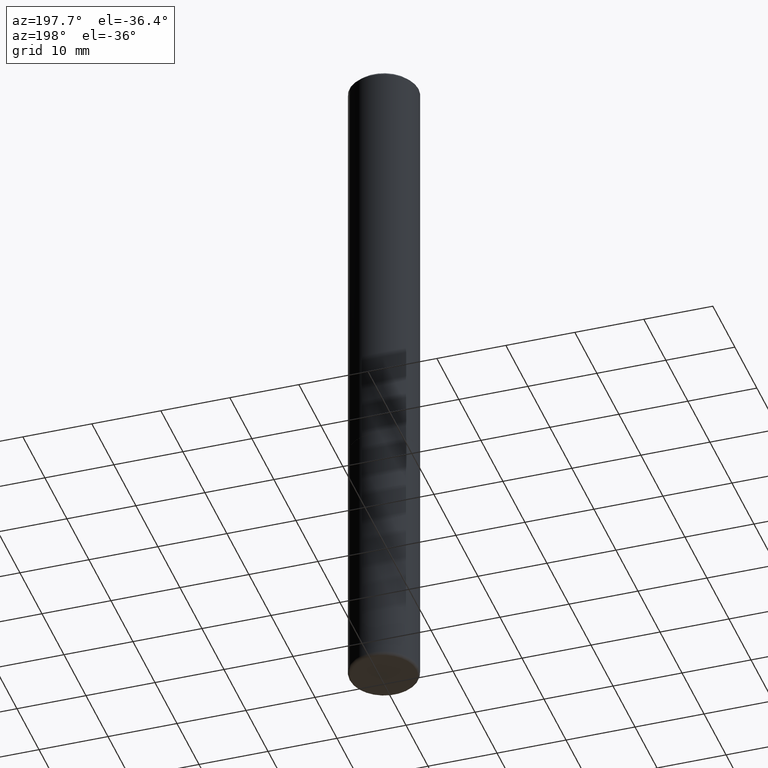
[diagram: clean part render]
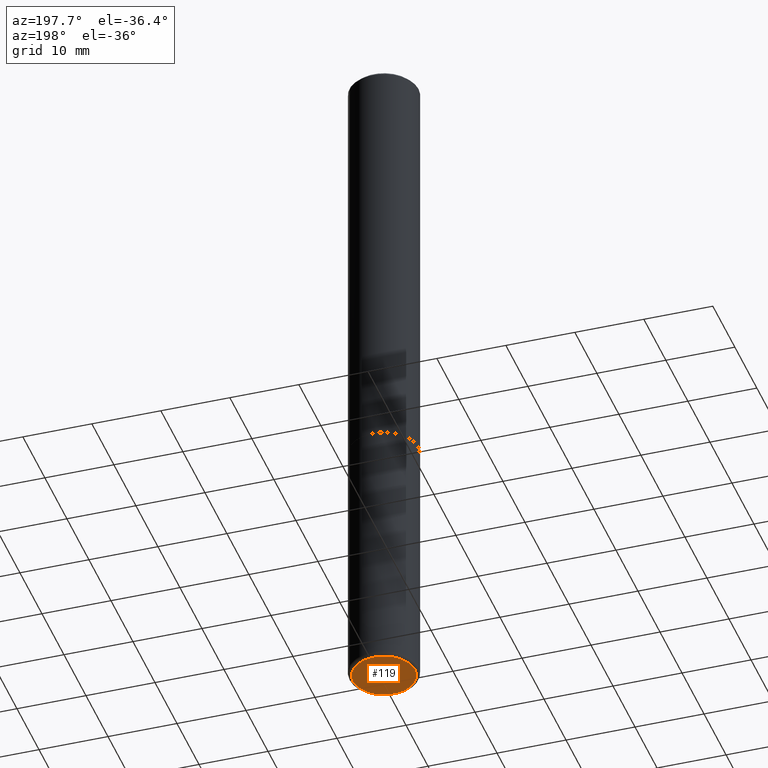
[diagram: same view with one face highlighted and labeled with its STEP entity id]
A machine part, auxiliary view. The second image highlights one B-rep face of the part: STEP entity #119.
In plain terms, the highlighted planar face has unit normal (0, -0, -1).
Its self-contained STEP definition (entity closure, byte-faithful):
#6 = VERTEX_POINT ( 'NONE', #77 ) ;
#9 = CARTESIAN_POINT ( 'NONE',  ( 9.627810689950881427E-29, -1.374596203102546184E-14, -3.936999999999999389 ) ) ;
#14 = VERTEX_POINT ( 'NONE', #83 ) ;
#77 = CARTESIAN_POINT ( 'NONE',  ( -0.1771500000000000019, -1.238285602396647324E-14, -3.936999999999999389 ) ) ;
#78 = CIRCLE ( 'NONE', #223, 0.1771500000000000019 ) ;
#82 = DIRECTION ( 'NONE',  ( 1.000000000000000000, -6.982962677686272233E-15, 0.000000000000000000 ) ) ;
#83 = CARTESIAN_POINT ( 'NONE',  ( 0.1771500000000000019, -1.498299386937758423E-14, -3.936999999999999389 ) ) ;
#88 = EDGE_CURVE ( 'NONE', #14, #6, #78, .T. ) ;
#109 = CARTESIAN_POINT ( 'NONE',  ( 9.627810689950881427E-29, -1.374596203102546184E-14, -3.936999999999999389 ) ) ;
#113 = AXIS2_PLACEMENT_3D ( 'NONE', #109, #362, #318 ) ;
#119 = ADVANCED_FACE ( 'NONE', ( #338 ), #409, .T. ) ;
#142 = DIRECTION ( 'NONE',  ( 2.438088387897960049E-29, -3.491481338843145188E-15, -1.000000000000000000 ) ) ;
#147 = EDGE_LOOP ( 'NONE', ( #359, #242 ) ) ;
#163 = DIRECTION ( 'NONE',  ( -2.445468806185136597E-29, 3.491481338843145583E-15, 1.000000000000000000 ) ) ;
#169 = DIRECTION ( 'NONE',  ( -1.000000000000000000, 6.982962677686265922E-15, -4.876176775795935793E-29 ) ) ;
#223 = AXIS2_PLACEMENT_3D ( 'NONE', #9, #163, #82 ) ;
#242 = ORIENTED_EDGE ( 'NONE', *, *, #329, .F. ) ;
#318 = DIRECTION ( 'NONE',  ( 1.000000000000000000, -6.982962677686272233E-15, 0.000000000000000000 ) ) ;
#329 = EDGE_CURVE ( 'NONE', #6, #14, #407, .T. ) ;
#338 = FACE_OUTER_BOUND ( 'NONE', #147, .T. ) ;
#350 = CARTESIAN_POINT ( 'NONE',  ( 1.810692529236509312E-28, -1.603387319135866675E-15, -3.937000000000000277 ) ) ;
#353 = AXIS2_PLACEMENT_3D ( 'NONE', #350, #142, #169 ) ;
#359 = ORIENTED_EDGE ( 'NONE', *, *, #88, .F. ) ;
#362 = DIRECTION ( 'NONE',  ( -2.445468806185136597E-29, 3.491481338843145583E-15, 1.000000000000000000 ) ) ;
#407 = CIRCLE ( 'NONE', #113, 0.1771500000000000019 ) ;
#409 = PLANE ( 'NONE',  #353 ) ;